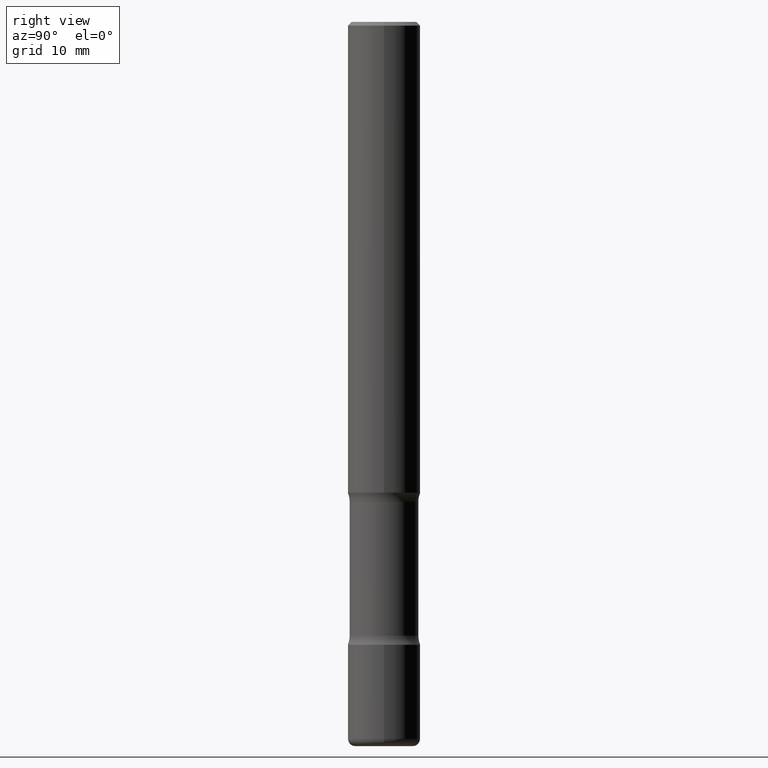
[diagram: clean part render]
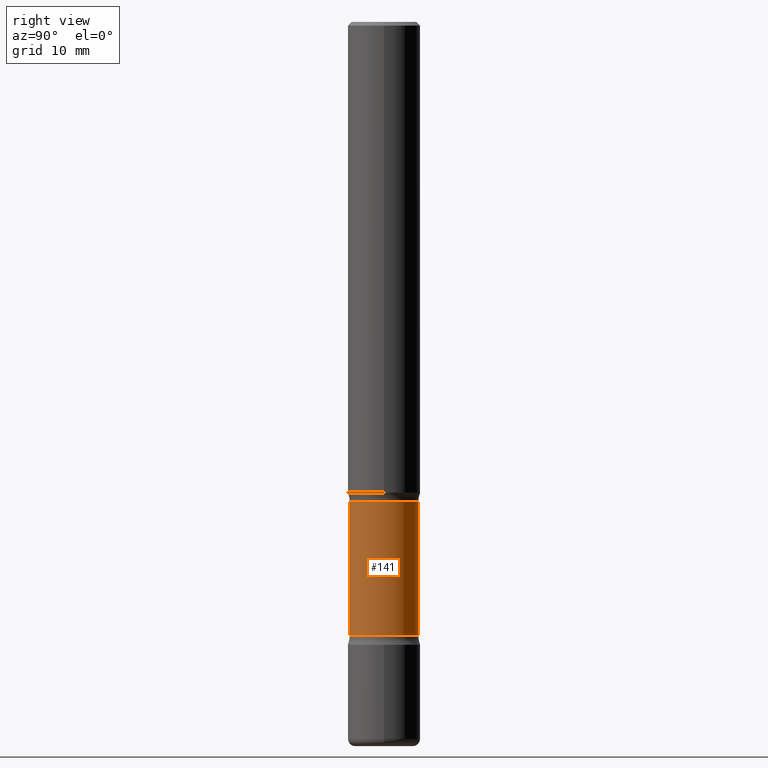
[diagram: same view with one face highlighted and labeled with its STEP entity id]
A machine part, right view. The second image highlights one B-rep face of the part: STEP entity #141.
In plain terms, the highlighted cylindrical surface (edge-blend (fillet) strip) has radius 4.7409 mm, axis along (0, -0, -1).
Its self-contained STEP definition (entity closure, byte-faithful):
#2 = DIRECTION ( 'NONE',  ( 6.982962677686266711E-15, 1.000000000000000000, -2.927241354046892304E-15 ) ) ;
#4 = VECTOR ( 'NONE', #336, 39.37007874015748143 ) ;
#19 = DIRECTION ( 'NONE',  ( 6.982962677686266711E-15, 1.000000000000000000, -2.927241354046893093E-15 ) ) ;
#26 = AXIS2_PLACEMENT_3D ( 'NONE', #402, #180, #188 ) ;
#34 = CARTESIAN_POINT ( 'NONE',  ( -1.315500491072630234E-15, -0.1866500000000093362, -2.608456647682591889 ) ) ;
#129 = EDGE_CURVE ( 'NONE', #182, #456, #333, .T. ) ;
#136 = CARTESIAN_POINT ( 'NONE',  ( 1.303369983790204808E-15, 0.1866499999999908233, -2.608456647682592777 ) ) ;
#141 = ADVANCED_FACE ( 'NONE', ( #483 ), #266, .T. ) ;
#146 = DIRECTION ( 'NONE',  ( 2.591588243807108620E-29, -3.282229987566573640E-15, -1.000000000000000000 ) ) ;
#171 = CARTESIAN_POINT ( 'NONE',  ( 1.303369983790238926E-15, 0.1866499999999864101, -3.937000000000000721 ) ) ;
#172 = EDGE_CURVE ( 'NONE', #543, #507, #428, .T. ) ;
#178 = CARTESIAN_POINT ( 'NONE',  ( 1.303369983790223149E-15, 0.1866499999999883530, -3.336343352317408861 ) ) ;
#180 = DIRECTION ( 'NONE',  ( 2.591588243807108620E-29, -3.282229987566573640E-15, -1.000000000000000000 ) ) ;
#182 = VERTEX_POINT ( 'NONE', #178 ) ;
#188 = DIRECTION ( 'NONE',  ( 6.982962677686266711E-15, 1.000000000000000000, -2.927241354046892699E-15 ) ) ;
#200 = CARTESIAN_POINT ( 'NONE',  ( -1.315500491072608935E-15, -0.1866500000000116399, -3.336343352317407529 ) ) ;
#221 = VECTOR ( 'NONE', #558, 39.37007874015748143 ) ;
#225 = AXIS2_PLACEMENT_3D ( 'NONE', #371, #366, #19 ) ;
#264 = ORIENTED_EDGE ( 'NONE', *, *, #129, .F. ) ;
#266 = CYLINDRICAL_SURFACE ( 'NONE', #26, 0.1866500000000000381 ) ;
#326 = CARTESIAN_POINT ( 'NONE',  ( -1.280511951283959495E-15, -0.1866500000000136661, -3.936999999999999389 ) ) ;
#333 = CIRCLE ( 'NONE', #225, 0.1866500000000000103 ) ;
#336 = DIRECTION ( 'NONE',  ( 2.591588243807108620E-29, -3.282229987566573640E-15, -1.000000000000000000 ) ) ;
#366 = DIRECTION ( 'NONE',  ( 2.591588243807108620E-29, -3.282229987566573640E-15, -1.000000000000000000 ) ) ;
#368 = LINE ( 'NONE', #326, #221 ) ;
#371 = CARTESIAN_POINT ( 'NONE',  ( 8.151697017269320442E-29, -1.165912942494680306E-14, -3.336343352317407973 ) ) ;
#387 = EDGE_LOOP ( 'NONE', ( #429, #485, #264, #434 ) ) ;
#401 = CARTESIAN_POINT ( 'NONE',  ( 6.265314390714234203E-29, -9.270037855443396476E-15, -2.608456647682592333 ) ) ;
#402 = CARTESIAN_POINT ( 'NONE',  ( 9.708351723968114409E-29, -1.363062268620181866E-14, -3.937000000000000277 ) ) ;
#423 = LINE ( 'NONE', #171, #4 ) ;
#428 = CIRCLE ( 'NONE', #449, 0.1866500000000000659 ) ;
#429 = ORIENTED_EDGE ( 'NONE', *, *, #172, .T. ) ;
#434 = ORIENTED_EDGE ( 'NONE', *, *, #500, .F. ) ;
#449 = AXIS2_PLACEMENT_3D ( 'NONE', #401, #146, #2 ) ;
#456 = VERTEX_POINT ( 'NONE', #200 ) ;
#463 = EDGE_CURVE ( 'NONE', #507, #456, #368, .T. ) ;
#483 = FACE_OUTER_BOUND ( 'NONE', #387, .T. ) ;
#485 = ORIENTED_EDGE ( 'NONE', *, *, #463, .T. ) ;
#500 = EDGE_CURVE ( 'NONE', #543, #182, #423, .T. ) ;
#507 = VERTEX_POINT ( 'NONE', #34 ) ;
#543 = VERTEX_POINT ( 'NONE', #136 ) ;
#558 = DIRECTION ( 'NONE',  ( 2.591588243807108620E-29, -3.282229987566573640E-15, -1.000000000000000000 ) ) ;